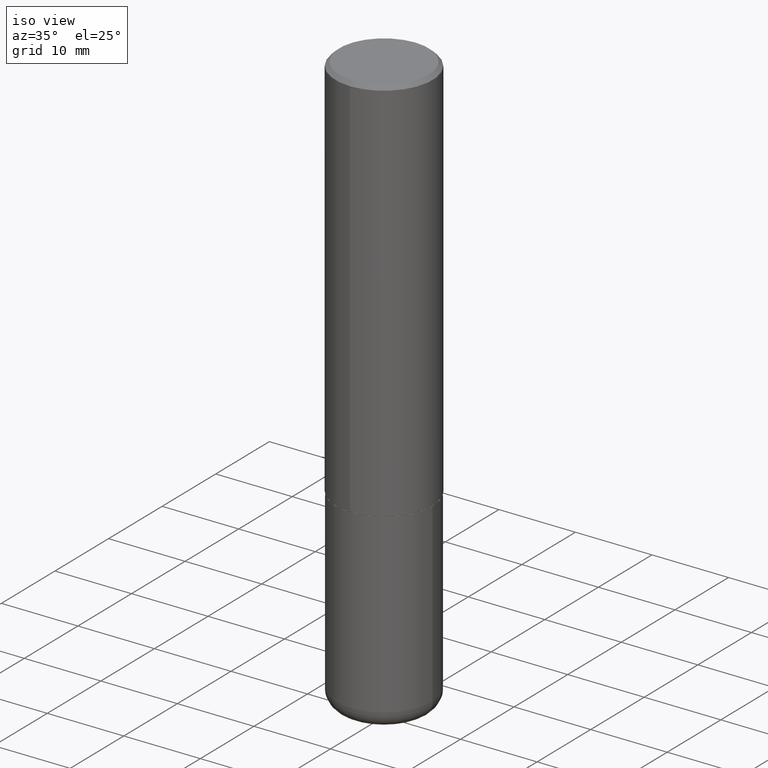
[diagram: clean part render]
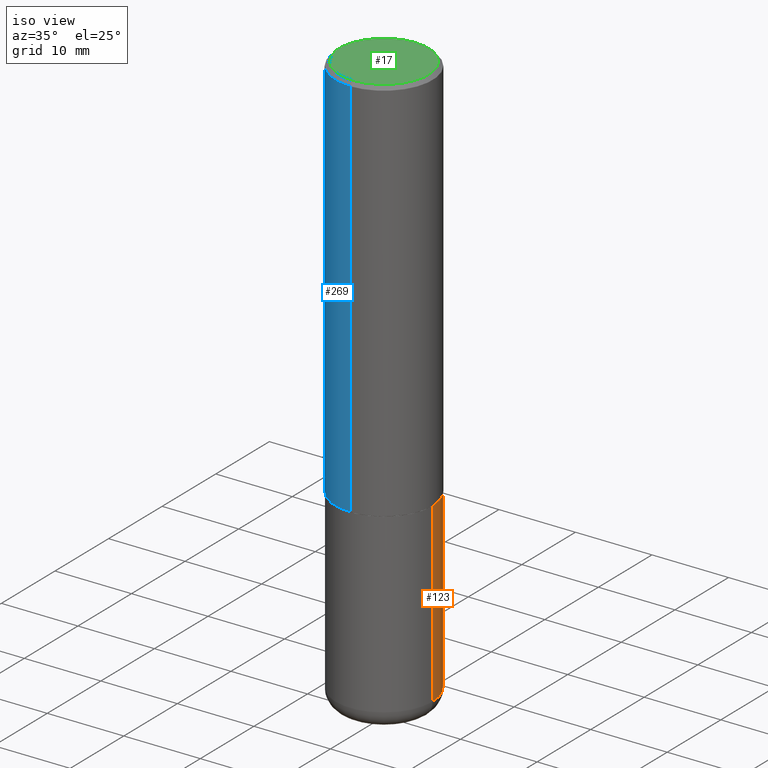
[diagram: same view with three faces highlighted in distinct colors, each labeled with its STEP entity id]
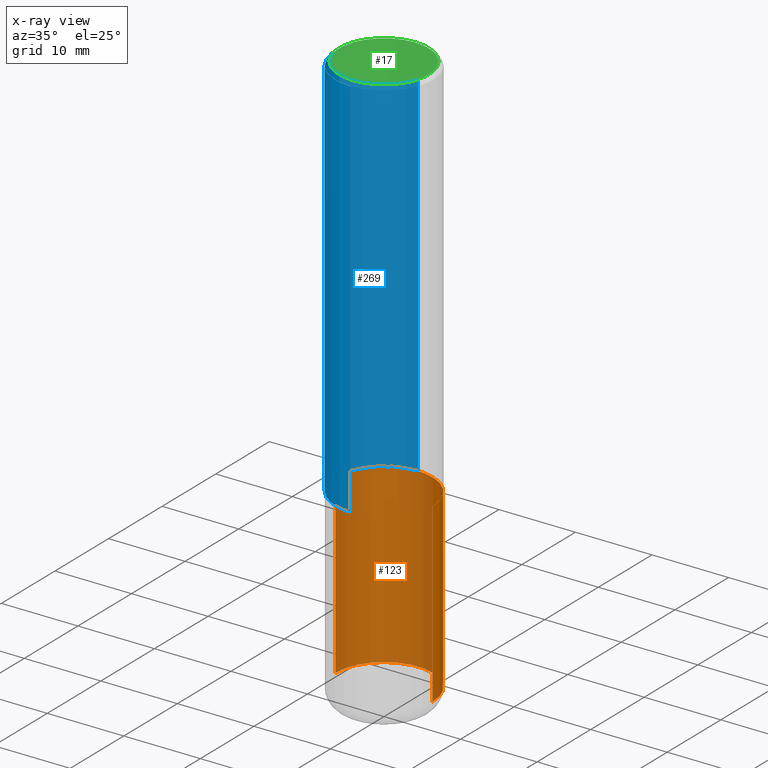
[diagram: x-ray of the same camera — body ghosted, the three highlighted faces saturated]
A machine part, iso view with three faces highlighted in distinct colors.
The next image is the same camera in x-ray (body ghosted, the three faces saturated) — at least one of them is partly hidden behind the body in this view.
Their STEP definitions:

[orange] entity #123 — the highlighted cylindrical surface (partial cylindrical patch) has radius 6.35 mm, axis along (-0, 0, 1).
#3 = ORIENTED_EDGE ( 'NONE', *, *, #47, .F. ) ;
#24 = DIRECTION ( 'NONE',  ( -2.445468806185136597E-29, 3.491481338843145583E-15, 1.000000000000000000 ) ) ;
#34 = ORIENTED_EDGE ( 'NONE', *, *, #362, .T. ) ;
#39 = CARTESIAN_POINT ( 'NONE',  ( -0.2500000000000000000, -6.795229847459672846E-15, -2.000000000000000444 ) ) ;
#41 = DIRECTION ( 'NONE',  ( -2.445468806185136877E-29, 3.491481338843145188E-15, 1.000000000000000000 ) ) ;
#42 = AXIS2_PLACEMENT_3D ( 'NONE', #343, #24, #279 ) ;
#47 = EDGE_CURVE ( 'NONE', #72, #244, #54, .T. ) ;
#54 = LINE ( 'NONE', #83, #274 ) ;
#72 = VERTEX_POINT ( 'NONE', #89 ) ;
#83 = CARTESIAN_POINT ( 'NONE',  ( 0.2500000000000000000, -1.745740669421566678E-15, 1.219044193948983948E-29 ) ) ;
#89 = CARTESIAN_POINT ( 'NONE',  ( 0.2500000000000000000, -1.190595136545512292E-14, -2.910000000000000586 ) ) ;
#108 = CARTESIAN_POINT ( 'NONE',  ( 0.2500000000000000000, -8.728703347107858632E-15, -2.000000000000000444 ) ) ;
#118 = CARTESIAN_POINT ( 'NONE',  ( 7.116314225998749245E-29, -1.016021069603355467E-14, -2.910000000000000586 ) ) ;
#121 = CYLINDRICAL_SURFACE ( 'NONE', #148, 0.2500000000000000000 ) ;
#123 = ADVANCED_FACE ( 'NONE', ( #272 ), #121, .T. ) ;
#140 = EDGE_CURVE ( 'NONE', #72, #235, #143, .T. ) ;
#143 = CIRCLE ( 'NONE', #238, 0.2500000000000000555 ) ;
#148 = AXIS2_PLACEMENT_3D ( 'NONE', #226, #344, #222 ) ;
#154 = DIRECTION ( 'NONE',  ( -2.445468806185136877E-29, 3.491481338843145188E-15, 1.000000000000000000 ) ) ;
#189 = CIRCLE ( 'NONE', #42, 0.2500000000000000000 ) ;
#199 = CARTESIAN_POINT ( 'NONE',  ( -0.2500000000000000000, 1.776356839400250465E-15, -1.229733772563726445E-29 ) ) ;
#205 = LINE ( 'NONE', #199, #211 ) ;
#209 = ORIENTED_EDGE ( 'NONE', *, *, #232, .F. ) ;
#211 = VECTOR ( 'NONE', #41, 39.37007874015748143 ) ;
#216 = DIRECTION ( 'NONE',  ( -2.445468806185136597E-29, 3.491481338843145583E-15, 1.000000000000000000 ) ) ;
#222 = DIRECTION ( 'NONE',  ( 1.000000000000000000, -6.982962677686266711E-15, 4.876176775795935793E-29 ) ) ;
#226 = CARTESIAN_POINT ( 'NONE',  ( 0.000000000000000000, 0.000000000000000000, 0.000000000000000000 ) ) ;
#232 = EDGE_CURVE ( 'NONE', #244, #366, #189, .T. ) ;
#235 = VERTEX_POINT ( 'NONE', #375 ) ;
#238 = AXIS2_PLACEMENT_3D ( 'NONE', #118, #216, #249 ) ;
#244 = VERTEX_POINT ( 'NONE', #108 ) ;
#249 = DIRECTION ( 'NONE',  ( 1.000000000000000000, -6.982962677686269077E-15, 0.000000000000000000 ) ) ;
#272 = FACE_OUTER_BOUND ( 'NONE', #327, .T. ) ;
#274 = VECTOR ( 'NONE', #154, 39.37007874015748143 ) ;
#279 = DIRECTION ( 'NONE',  ( 1.000000000000000000, -6.982962677686266711E-15, 0.000000000000000000 ) ) ;
#288 = ORIENTED_EDGE ( 'NONE', *, *, #140, .T. ) ;
#327 = EDGE_LOOP ( 'NONE', ( #288, #34, #209, #3 ) ) ;
#343 = CARTESIAN_POINT ( 'NONE',  ( 4.890937612370273754E-29, -6.982962677686291954E-15, -2.000000000000000444 ) ) ;
#344 = DIRECTION ( 'NONE',  ( -2.445468806185136597E-29, 3.491481338843145583E-15, 1.000000000000000000 ) ) ;
#362 = EDGE_CURVE ( 'NONE', #235, #366, #205, .T. ) ;
#366 = VERTEX_POINT ( 'NONE', #39 ) ;
#375 = CARTESIAN_POINT ( 'NONE',  ( -0.2500000000000000000, -8.383853856633304202E-15, -2.910000000000000586 ) ) ;

[blue] entity #269 — the highlighted cylindrical surface (partial cylindrical patch) has radius 6.35 mm, axis along (-0, 0, 1).
#6 = AXIS2_PLACEMENT_3D ( 'NONE', #35, #95, #25 ) ;
#10 = ORIENTED_EDGE ( 'NONE', *, *, #202, .F. ) ;
#21 = CARTESIAN_POINT ( 'NONE',  ( 1.776356839400276103E-15, 0.2499999999999932276, -1.999000000000000998 ) ) ;
#25 = DIRECTION ( 'NONE',  ( -6.982962677686265922E-15, -1.000000000000000000, 3.490450240978375769E-15 ) ) ;
#27 = CARTESIAN_POINT ( 'NONE',  ( 4.889931447133643413E-29, -6.977410031715773956E-15, -1.999000000000000110 ) ) ;
#35 = CARTESIAN_POINT ( 'NONE',  ( 0.000000000000000000, 0.000000000000000000, 0.000000000000000000 ) ) ;
#50 = VECTOR ( 'NONE', #407, 39.37007874015748143 ) ;
#63 = CARTESIAN_POINT ( 'NONE',  ( -1.745740669421566875E-15, -0.2500000000000000555, 8.726125602445941395E-16 ) ) ;
#78 = EDGE_CURVE ( 'NONE', #293, #295, #305, .T. ) ;
#79 = LINE ( 'NONE', #127, #50 ) ;
#87 = CARTESIAN_POINT ( 'NONE',  ( -1.745740669421518952E-15, -0.2500000000000071609, -1.998999999999999444 ) ) ;
#95 = DIRECTION ( 'NONE',  ( -2.446188817975809368E-29, 3.490450240978375769E-15, 1.000000000000000000 ) ) ;
#97 = VERTEX_POINT ( 'NONE', #21 ) ;
#109 = ORIENTED_EDGE ( 'NONE', *, *, #78, .T. ) ;
#113 = EDGE_CURVE ( 'NONE', #97, #293, #136, .T. ) ;
#122 = DIRECTION ( 'NONE',  ( -6.982962677686265922E-15, -1.000000000000000000, 3.483106191921935949E-15 ) ) ;
#127 = CARTESIAN_POINT ( 'NONE',  ( 1.776356839400250859E-15, 0.2500000000000000555, -8.726125602445941395E-16 ) ) ;
#134 = VERTEX_POINT ( 'NONE', #156 ) ;
#136 = CIRCLE ( 'NONE', #177, 0.2500000000000002220 ) ;
#156 = CARTESIAN_POINT ( 'NONE',  ( 1.745740669421566678E-15, 0.2499999999999998890, -0.02000000000000096492 ) ) ;
#159 = CARTESIAN_POINT ( 'NONE',  ( 4.892377635951642279E-31, -6.980900481956783980E-17, -0.02000000000000009409 ) ) ;
#177 = AXIS2_PLACEMENT_3D ( 'NONE', #27, #224, #191 ) ;
#191 = DIRECTION ( 'NONE',  ( -6.982962677686265133E-15, -1.000000000000000000, 3.278217592397113101E-15 ) ) ;
#195 = CARTESIAN_POINT ( 'NONE',  ( -1.715124499442881905E-15, -0.2500000000000000555, -0.01999999999999922326 ) ) ;
#202 = EDGE_CURVE ( 'NONE', #97, #134, #79, .T. ) ;
#223 = CYLINDRICAL_SURFACE ( 'NONE', #6, 0.2500000000000000555 ) ;
#224 = DIRECTION ( 'NONE',  ( -2.446188817975809368E-29, 3.490450240978375769E-15, 1.000000000000000000 ) ) ;
#240 = ORIENTED_EDGE ( 'NONE', *, *, #113, .T. ) ;
#262 = VECTOR ( 'NONE', #402, 39.37007874015748143 ) ;
#269 = ADVANCED_FACE ( 'NONE', ( #414 ), #223, .T. ) ;
#293 = VERTEX_POINT ( 'NONE', #87 ) ;
#294 = AXIS2_PLACEMENT_3D ( 'NONE', #159, #384, #122 ) ;
#295 = VERTEX_POINT ( 'NONE', #195 ) ;
#305 = LINE ( 'NONE', #63, #262 ) ;
#316 = EDGE_CURVE ( 'NONE', #134, #295, #388, .T. ) ;
#324 = ORIENTED_EDGE ( 'NONE', *, *, #316, .F. ) ;
#363 = EDGE_LOOP ( 'NONE', ( #10, #240, #109, #324 ) ) ;
#384 = DIRECTION ( 'NONE',  ( -2.446188817975809368E-29, 3.490450240978375769E-15, 1.000000000000000000 ) ) ;
#388 = CIRCLE ( 'NONE', #294, 0.2499999999999999722 ) ;
#402 = DIRECTION ( 'NONE',  ( -2.446188817975809368E-29, 3.490450240978375769E-15, 1.000000000000000000 ) ) ;
#407 = DIRECTION ( 'NONE',  ( -2.446188817975809368E-29, 3.490450240978375769E-15, 1.000000000000000000 ) ) ;
#414 = FACE_OUTER_BOUND ( 'NONE', #363, .T. ) ;

[green] entity #17 — the highlighted planar face has unit normal (0, -0, -1).
#17 = ADVANCED_FACE ( 'NONE', ( #241 ), #397, .F. ) ;
#75 = CIRCLE ( 'NONE', #312, 0.2299999999999997047 ) ;
#85 = EDGE_CURVE ( 'NONE', #270, #391, #75, .T. ) ;
#98 = CARTESIAN_POINT ( 'NONE',  ( -6.363567190676771344E-45, 9.080130883992732273E-31, 2.601421093872280714E-16 ) ) ;
#114 = AXIS2_PLACEMENT_3D ( 'NONE', #144, #243, #330 ) ;
#128 = ORIENTED_EDGE ( 'NONE', *, *, #85, .T. ) ;
#135 = DIRECTION ( 'NONE',  ( -6.982962677686265922E-15, -1.000000000000000000, 3.490450240978375769E-15 ) ) ;
#144 = CARTESIAN_POINT ( 'NONE',  ( 1.606081415867839095E-15, 0.2299999999999997047, -6.727325007314114504E-16 ) ) ;
#150 = CARTESIAN_POINT ( 'NONE',  ( -6.363567190676771344E-45, 9.080130883992732273E-31, 2.601421093872280714E-16 ) ) ;
#165 = EDGE_LOOP ( 'NONE', ( #128, #358 ) ) ;
#241 = FACE_OUTER_BOUND ( 'NONE', #165, .T. ) ;
#243 = DIRECTION ( 'NONE',  ( 2.446188817975809368E-29, -3.490450240978375769E-15, -1.000000000000000000 ) ) ;
#253 = DIRECTION ( 'NONE',  ( -6.982962677686265922E-15, -1.000000000000000000, 3.490450240978375769E-15 ) ) ;
#254 = CARTESIAN_POINT ( 'NONE',  ( 1.675911042644702985E-15, 0.2299999999999997047, -5.426614460377973654E-16 ) ) ;
#270 = VERTEX_POINT ( 'NONE', #254 ) ;
#273 = CARTESIAN_POINT ( 'NONE',  ( -1.646519519465165981E-15, -0.2299999999999997047, 1.062945664812253508E-15 ) ) ;
#312 = AXIS2_PLACEMENT_3D ( 'NONE', #150, #349, #253 ) ;
#326 = DIRECTION ( 'NONE',  ( -2.446188817975809368E-29, 3.490450240978375769E-15, 1.000000000000000000 ) ) ;
#330 = DIRECTION ( 'NONE',  ( 6.982962677686265922E-15, 1.000000000000000000, -3.490450240978375769E-15 ) ) ;
#349 = DIRECTION ( 'NONE',  ( -2.446188817975809368E-29, 3.490450240978375769E-15, 1.000000000000000000 ) ) ;
#358 = ORIENTED_EDGE ( 'NONE', *, *, #393, .T. ) ;
#364 = AXIS2_PLACEMENT_3D ( 'NONE', #98, #326, #135 ) ;
#378 = CIRCLE ( 'NONE', #364, 0.2299999999999997047 ) ;
#391 = VERTEX_POINT ( 'NONE', #273 ) ;
#393 = EDGE_CURVE ( 'NONE', #391, #270, #378, .T. ) ;
#397 = PLANE ( 'NONE',  #114 ) ;